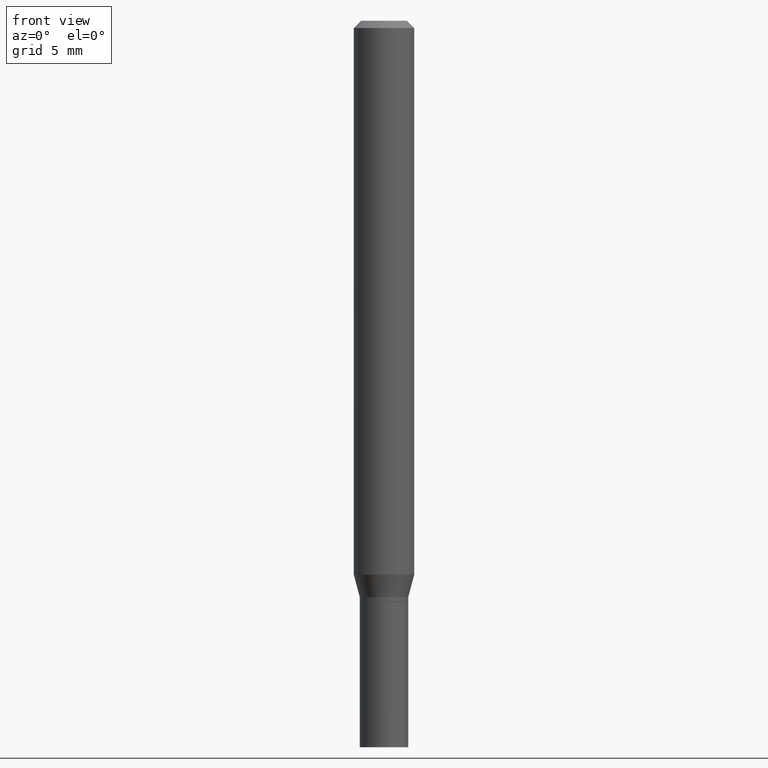
[diagram: clean part render]
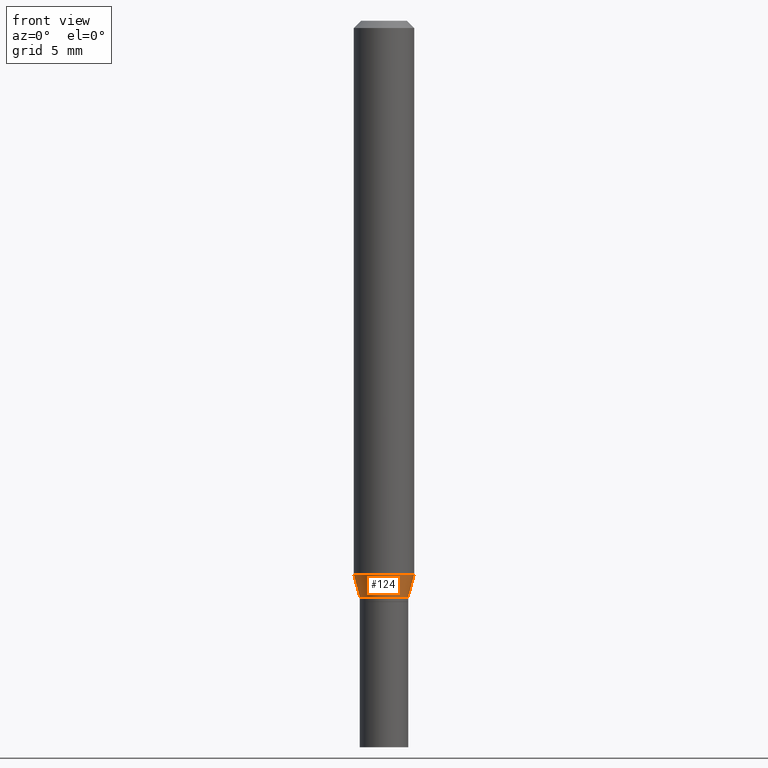
[diagram: same view with one face highlighted and labeled with its STEP entity id]
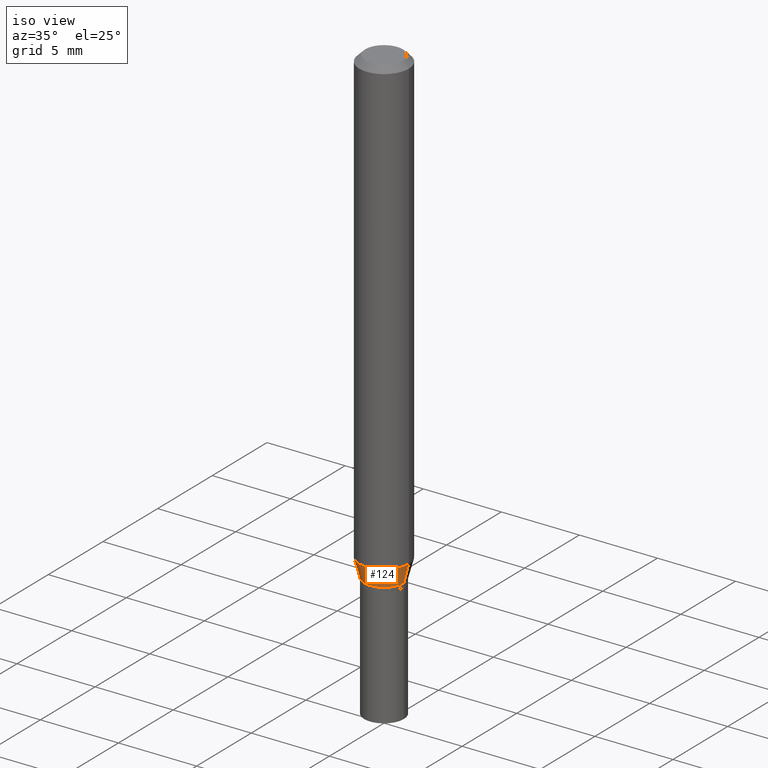
[diagram: same view with one face highlighted and labeled with its STEP entity id]
A machine part, front view. The second image highlights one B-rep face of the part: STEP entity #124.
A second angle (iso view) of the same face is appended — the face is thin or edge-on in the first view.
In plain terms, the highlighted conical surface has half-angle 15 deg.
Its self-contained STEP definition (entity closure, byte-faithful):
#6 = DIRECTION ( 'NONE',  ( 1.000000000000000000, -6.982962677686266711E-15, 0.000000000000000000 ) ) ;
#8 = CARTESIAN_POINT ( 'NONE',  ( -0.05000000000000005829, -3.799591425343292957E-15, -1.190000000000000169 ) ) ;
#17 = DIRECTION ( 'NONE',  ( 1.000000000000000000, -6.982962677686266711E-15, 0.000000000000000000 ) ) ;
#35 = DIRECTION ( 'NONE',  ( 1.000000000000000000, -6.982962677686270655E-15, 0.000000000000000000 ) ) ;
#36 = AXIS2_PLACEMENT_3D ( 'NONE', #121, #342, #17 ) ;
#43 = FACE_OUTER_BOUND ( 'NONE', #309, .T. ) ;
#44 = EDGE_CURVE ( 'NONE', #152, #78, #46, .T. ) ;
#46 = CIRCLE ( 'NONE', #302, 0.06250000000000000000 ) ;
#67 = CARTESIAN_POINT ( 'NONE',  ( 2.910107879360313156E-29, -4.154862793223344154E-15, -1.190000000000000169 ) ) ;
#75 = CARTESIAN_POINT ( 'NONE',  ( -0.05000000000000005829, -3.673742593419279671E-15, -1.190000000000000169 ) ) ;
#78 = VERTEX_POINT ( 'NONE', #434 ) ;
#97 = VERTEX_POINT ( 'NONE', #331 ) ;
#113 = CONICAL_SURFACE ( 'NONE', #365, 0.05000000000000005829, 0.2617993877991508511 ) ;
#121 = CARTESIAN_POINT ( 'NONE',  ( 2.910107879360313156E-29, -4.154862793223344154E-15, -1.190000000000000169 ) ) ;
#124 = ADVANCED_FACE ( 'NONE', ( #43 ), #113, .T. ) ;
#148 = DIRECTION ( 'NONE',  ( -0.2588190451025220717, 5.211531920934554197E-15, 0.9659258262890678681 ) ) ;
#152 = VERTEX_POINT ( 'NONE', #184 ) ;
#184 = CARTESIAN_POINT ( 'NONE',  ( -0.06250000000000000000, -3.547893761495267568E-15, -1.143349364905389631 ) ) ;
#193 = VERTEX_POINT ( 'NONE', #75 ) ;
#209 = EDGE_CURVE ( 'NONE', #193, #152, #255, .T. ) ;
#231 = ORIENTED_EDGE ( 'NONE', *, *, #44, .F. ) ;
#255 = LINE ( 'NONE', #8, #318 ) ;
#258 = VECTOR ( 'NONE', #450, 39.37007874015748854 ) ;
#302 = AXIS2_PLACEMENT_3D ( 'NONE', #354, #358, #35 ) ;
#309 = EDGE_LOOP ( 'NONE', ( #459, #408, #317, #231 ) ) ;
#317 = ORIENTED_EDGE ( 'NONE', *, *, #322, .T. ) ;
#318 = VECTOR ( 'NONE', #148, 39.37007874015748854 ) ;
#322 = EDGE_CURVE ( 'NONE', #97, #78, #378, .T. ) ;
#331 = CARTESIAN_POINT ( 'NONE',  ( 0.05000000000000005829, -4.504010927107657490E-15, -1.190000000000000169 ) ) ;
#342 = DIRECTION ( 'NONE',  ( -2.445468806185136597E-29, 3.491481338843145583E-15, 1.000000000000000000 ) ) ;
#354 = CARTESIAN_POINT ( 'NONE',  ( 2.796025206447717260E-29, -3.991982971345330579E-15, -1.143349364905389631 ) ) ;
#358 = DIRECTION ( 'NONE',  ( -2.445468806185136597E-29, 3.491481338843145583E-15, 1.000000000000000000 ) ) ;
#365 = AXIS2_PLACEMENT_3D ( 'NONE', #67, #366, #6 ) ;
#366 = DIRECTION ( 'NONE',  ( -2.445468806185136597E-29, 3.491481338843145583E-15, 1.000000000000000000 ) ) ;
#372 = CIRCLE ( 'NONE', #36, 0.05000000000000005829 ) ;
#377 = EDGE_CURVE ( 'NONE', #193, #97, #372, .T. ) ;
#378 = LINE ( 'NONE', #448, #258 ) ;
#408 = ORIENTED_EDGE ( 'NONE', *, *, #377, .T. ) ;
#434 = CARTESIAN_POINT ( 'NONE',  ( 0.06250000000000000000, -4.428418138700722248E-15, -1.143349364905389631 ) ) ;
#448 = CARTESIAN_POINT ( 'NONE',  ( 0.05000000000000005829, -4.504010927107657490E-15, -1.190000000000000169 ) ) ;
#450 = DIRECTION ( 'NONE',  ( 0.2588190451025220717, 1.565188264969615854E-15, 0.9659258262890678681 ) ) ;
#459 = ORIENTED_EDGE ( 'NONE', *, *, #209, .F. ) ;